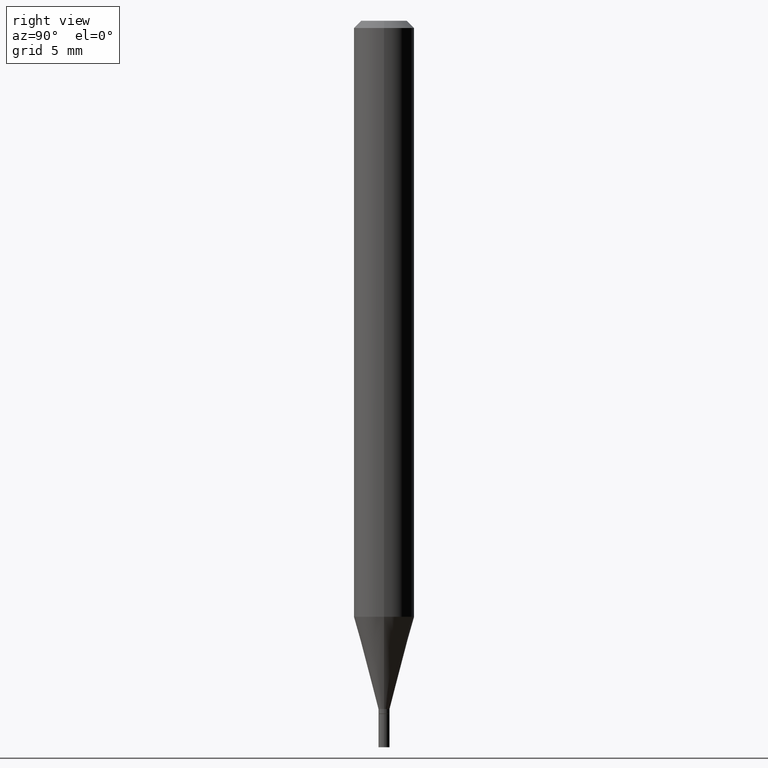
[diagram: clean part render]
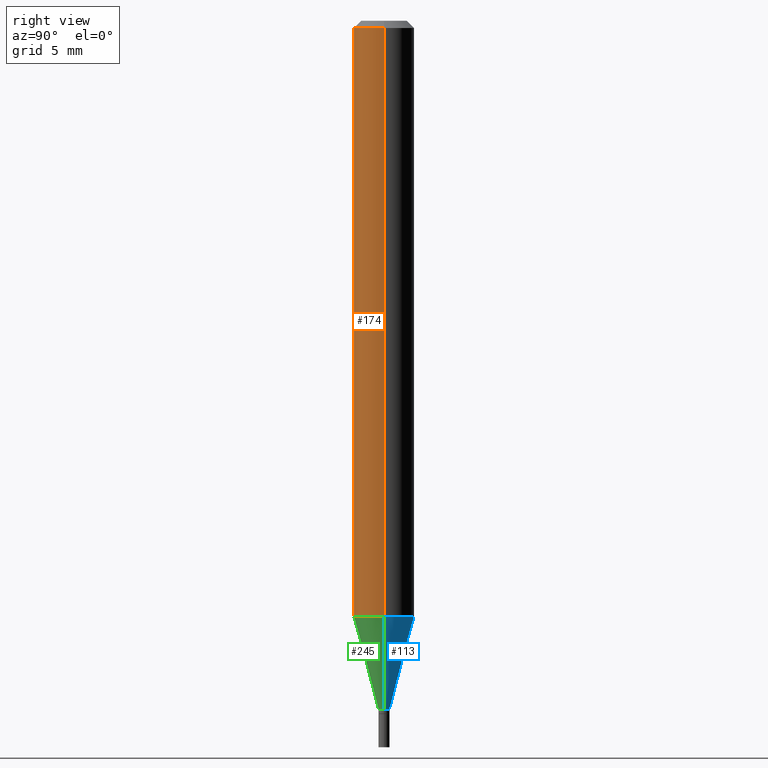
[diagram: same view with three faces highlighted in distinct colors, each labeled with its STEP entity id]
A machine part, right view with three faces highlighted in distinct colors.
Their STEP definitions:

[orange] entity #174 — the highlighted cylindrical surface (edge-blend (fillet) strip) has radius 1.5875 mm, axis along (-0, 0, 1).
#26 = DIRECTION ( 'NONE',  ( 1.000000000000000000, -6.982962677686266711E-15, 4.876176775795935793E-29 ) ) ;
#31 = CIRCLE ( 'NONE', #459, 0.06250000000000000000 ) ;
#44 = CARTESIAN_POINT ( 'NONE',  ( 3.009553868105685827E-29, -4.296845309233809826E-15, -1.230665408813987893 ) ) ;
#80 = VERTEX_POINT ( 'NONE', #104 ) ;
#81 = DIRECTION ( 'NONE',  ( -2.445468806185136877E-29, 3.491481338843145188E-15, 1.000000000000000000 ) ) ;
#92 = CARTESIAN_POINT ( 'NONE',  ( -0.06249999999999997918, -3.852756099383747210E-15, -1.230665408813987893 ) ) ;
#104 = CARTESIAN_POINT ( 'NONE',  ( -0.06250000000000000000, -1.730519554808165837E-15, -0.01499999999999999944 ) ) ;
#105 = CYLINDRICAL_SURFACE ( 'NONE', #395, 0.06250000000000000000 ) ;
#108 = CIRCLE ( 'NONE', #385, 0.06250000000000000000 ) ;
#120 = EDGE_CURVE ( 'NONE', #412, #322, #31, .T. ) ;
#124 = DIRECTION ( 'NONE',  ( 1.000000000000000000, -6.982962677686266711E-15, 0.000000000000000000 ) ) ;
#136 = DIRECTION ( 'NONE',  ( -2.445468806185136597E-29, 3.491481338843145583E-15, 1.000000000000000000 ) ) ;
#160 = LINE ( 'NONE', #281, #196 ) ;
#174 = ADVANCED_FACE ( 'NONE', ( #339 ), #105, .T. ) ;
#183 = EDGE_LOOP ( 'NONE', ( #241, #254, #220, #458 ) ) ;
#195 = CARTESIAN_POINT ( 'NONE',  ( -0.06250000000000000000, 4.440892098500626162E-16, -3.074334431409316114E-30 ) ) ;
#196 = VECTOR ( 'NONE', #442, 39.37007874015748143 ) ;
#212 = CARTESIAN_POINT ( 'NONE',  ( 0.000000000000000000, 0.000000000000000000, 0.000000000000000000 ) ) ;
#220 = ORIENTED_EDGE ( 'NONE', *, *, #433, .T. ) ;
#237 = EDGE_CURVE ( 'NONE', #412, #80, #272, .T. ) ;
#241 = ORIENTED_EDGE ( 'NONE', *, *, #237, .F. ) ;
#254 = ORIENTED_EDGE ( 'NONE', *, *, #120, .T. ) ;
#269 = CARTESIAN_POINT ( 'NONE',  ( 0.06250000000000000000, -4.888073874380388472E-16, -0.01499999999999999944 ) ) ;
#272 = LINE ( 'NONE', #195, #451 ) ;
#278 = CARTESIAN_POINT ( 'NONE',  ( 0.06249999999999997918, -4.733280476589200707E-15, -1.230665408813987893 ) ) ;
#281 = CARTESIAN_POINT ( 'NONE',  ( 0.06250000000000000000, -4.364351673553916694E-16, 3.047610484872459871E-30 ) ) ;
#308 = DIRECTION ( 'NONE',  ( 1.000000000000000000, -6.982962677686262766E-15, 0.000000000000000000 ) ) ;
#322 = VERTEX_POINT ( 'NONE', #278 ) ;
#336 = VERTEX_POINT ( 'NONE', #269 ) ;
#339 = FACE_OUTER_BOUND ( 'NONE', #183, .T. ) ;
#341 = DIRECTION ( 'NONE',  ( -2.445468806185136597E-29, 3.491481338843145583E-15, 1.000000000000000000 ) ) ;
#377 = CARTESIAN_POINT ( 'NONE',  ( 3.668203209277705088E-31, -5.237222008264718399E-17, -0.01499999999999999944 ) ) ;
#385 = AXIS2_PLACEMENT_3D ( 'NONE', #377, #454, #124 ) ;
#395 = AXIS2_PLACEMENT_3D ( 'NONE', #212, #136, #26 ) ;
#412 = VERTEX_POINT ( 'NONE', #92 ) ;
#433 = EDGE_CURVE ( 'NONE', #322, #336, #160, .T. ) ;
#437 = EDGE_CURVE ( 'NONE', #80, #336, #108, .T. ) ;
#442 = DIRECTION ( 'NONE',  ( -2.445468806185136877E-29, 3.491481338843145188E-15, 1.000000000000000000 ) ) ;
#451 = VECTOR ( 'NONE', #81, 39.37007874015748143 ) ;
#454 = DIRECTION ( 'NONE',  ( -2.445468806185136597E-29, 3.491481338843145583E-15, 1.000000000000000000 ) ) ;
#458 = ORIENTED_EDGE ( 'NONE', *, *, #437, .F. ) ;
#459 = AXIS2_PLACEMENT_3D ( 'NONE', #44, #341, #308 ) ;

[blue] entity #113 — the highlighted conical surface has half-angle 15 deg.
#10 = DIRECTION ( 'NONE',  ( -2.445468806185136597E-29, 3.491481338843145583E-15, 1.000000000000000000 ) ) ;
#45 = DIRECTION ( 'NONE',  ( 1.000000000000000000, -6.982962677686254878E-15, 0.000000000000000000 ) ) ;
#53 = LINE ( 'NONE', #203, #221 ) ;
#56 = VERTEX_POINT ( 'NONE', #230 ) ;
#65 = EDGE_CURVE ( 'NONE', #56, #412, #332, .T. ) ;
#85 = ORIENTED_EDGE ( 'NONE', *, *, #347, .F. ) ;
#92 = CARTESIAN_POINT ( 'NONE',  ( -0.06249999999999997918, -3.852756099383747210E-15, -1.230665408813987893 ) ) ;
#113 = ADVANCED_FACE ( 'NONE', ( #114 ), #320, .T. ) ;
#114 = FACE_OUTER_BOUND ( 'NONE', #288, .T. ) ;
#116 = AXIS2_PLACEMENT_3D ( 'NONE', #282, #307, #45 ) ;
#127 = VERTEX_POINT ( 'NONE', #414 ) ;
#145 = DIRECTION ( 'NONE',  ( 1.000000000000000000, -6.982962677686254878E-15, 0.000000000000000000 ) ) ;
#156 = DIRECTION ( 'NONE',  ( 1.000000000000000000, -6.982962677686262766E-15, 0.000000000000000000 ) ) ;
#163 = CIRCLE ( 'NONE', #375, 0.06250000000000000000 ) ;
#201 = CARTESIAN_POINT ( 'NONE',  ( 3.009553868105685827E-29, -4.296845309233809826E-15, -1.230665408813987893 ) ) ;
#203 = CARTESIAN_POINT ( 'NONE',  ( 0.01149999999999992001, -5.041699053289501888E-15, -1.421000000000000263 ) ) ;
#221 = VECTOR ( 'NONE', #351, 39.37007874015748143 ) ;
#226 = EDGE_CURVE ( 'NONE', #127, #56, #452, .T. ) ;
#230 = CARTESIAN_POINT ( 'NONE',  ( -0.01149999999999992001, -4.366219333633723973E-15, -1.421000000000000263 ) ) ;
#242 = ORIENTED_EDGE ( 'NONE', *, *, #268, .F. ) ;
#260 = VECTOR ( 'NONE', #276, 39.37007874015748143 ) ;
#268 = EDGE_CURVE ( 'NONE', #322, #412, #163, .T. ) ;
#276 = DIRECTION ( 'NONE',  ( -0.2588190451025216277, 5.211531920934551831E-15, 0.9659258262890679791 ) ) ;
#278 = CARTESIAN_POINT ( 'NONE',  ( 0.06249999999999997918, -4.733280476589200707E-15, -1.230665408813987893 ) ) ;
#282 = CARTESIAN_POINT ( 'NONE',  ( 3.475011173589079817E-29, -4.961394982496111147E-15, -1.421000000000000263 ) ) ;
#288 = EDGE_LOOP ( 'NONE', ( #420, #464, #242, #85 ) ) ;
#307 = DIRECTION ( 'NONE',  ( -2.445468806185136597E-29, 3.491481338843145583E-15, 1.000000000000000000 ) ) ;
#315 = DIRECTION ( 'NONE',  ( -2.445468806185136597E-29, 3.491481338843145583E-15, 1.000000000000000000 ) ) ;
#320 = CONICAL_SURFACE ( 'NONE', #333, 0.01149999999999992001, 0.2617993877991502960 ) ;
#322 = VERTEX_POINT ( 'NONE', #278 ) ;
#332 = LINE ( 'NONE', #438, #260 ) ;
#333 = AXIS2_PLACEMENT_3D ( 'NONE', #338, #10, #145 ) ;
#338 = CARTESIAN_POINT ( 'NONE',  ( 3.475011173589079817E-29, -4.961394982496111147E-15, -1.421000000000000263 ) ) ;
#347 = EDGE_CURVE ( 'NONE', #127, #322, #53, .T. ) ;
#351 = DIRECTION ( 'NONE',  ( 0.2588190451025216277, 1.565188264969619995E-15, 0.9659258262890679791 ) ) ;
#375 = AXIS2_PLACEMENT_3D ( 'NONE', #201, #315, #156 ) ;
#412 = VERTEX_POINT ( 'NONE', #92 ) ;
#414 = CARTESIAN_POINT ( 'NONE',  ( 0.01149999999999992001, -5.041699053289501888E-15, -1.421000000000000263 ) ) ;
#420 = ORIENTED_EDGE ( 'NONE', *, *, #226, .T. ) ;
#438 = CARTESIAN_POINT ( 'NONE',  ( -0.01149999999999992001, -4.879682567883699947E-15, -1.421000000000000263 ) ) ;
#452 = CIRCLE ( 'NONE', #116, 0.01149999999999992001 ) ;
#464 = ORIENTED_EDGE ( 'NONE', *, *, #65, .T. ) ;

[green] entity #245 — the highlighted conical surface has half-angle 15 deg.
#31 = CIRCLE ( 'NONE', #459, 0.06250000000000000000 ) ;
#44 = CARTESIAN_POINT ( 'NONE',  ( 3.009553868105685827E-29, -4.296845309233809826E-15, -1.230665408813987893 ) ) ;
#53 = LINE ( 'NONE', #203, #221 ) ;
#56 = VERTEX_POINT ( 'NONE', #230 ) ;
#65 = EDGE_CURVE ( 'NONE', #56, #412, #332, .T. ) ;
#88 = AXIS2_PLACEMENT_3D ( 'NONE', #239, #381, #131 ) ;
#92 = CARTESIAN_POINT ( 'NONE',  ( -0.06249999999999997918, -3.852756099383747210E-15, -1.230665408813987893 ) ) ;
#120 = EDGE_CURVE ( 'NONE', #412, #322, #31, .T. ) ;
#127 = VERTEX_POINT ( 'NONE', #414 ) ;
#131 = DIRECTION ( 'NONE',  ( 1.000000000000000000, -6.982962677686254878E-15, 0.000000000000000000 ) ) ;
#135 = ORIENTED_EDGE ( 'NONE', *, *, #143, .T. ) ;
#143 = EDGE_CURVE ( 'NONE', #56, #127, #357, .T. ) ;
#176 = EDGE_LOOP ( 'NONE', ( #355, #135, #316, #388 ) ) ;
#190 = AXIS2_PLACEMENT_3D ( 'NONE', #380, #275, #409 ) ;
#203 = CARTESIAN_POINT ( 'NONE',  ( 0.01149999999999992001, -5.041699053289501888E-15, -1.421000000000000263 ) ) ;
#221 = VECTOR ( 'NONE', #351, 39.37007874015748143 ) ;
#230 = CARTESIAN_POINT ( 'NONE',  ( -0.01149999999999992001, -4.366219333633723973E-15, -1.421000000000000263 ) ) ;
#239 = CARTESIAN_POINT ( 'NONE',  ( 3.475011173589079817E-29, -4.961394982496111147E-15, -1.421000000000000263 ) ) ;
#245 = ADVANCED_FACE ( 'NONE', ( #408 ), #324, .T. ) ;
#260 = VECTOR ( 'NONE', #276, 39.37007874015748143 ) ;
#275 = DIRECTION ( 'NONE',  ( -2.445468806185136597E-29, 3.491481338843145583E-15, 1.000000000000000000 ) ) ;
#276 = DIRECTION ( 'NONE',  ( -0.2588190451025216277, 5.211531920934551831E-15, 0.9659258262890679791 ) ) ;
#278 = CARTESIAN_POINT ( 'NONE',  ( 0.06249999999999997918, -4.733280476589200707E-15, -1.230665408813987893 ) ) ;
#308 = DIRECTION ( 'NONE',  ( 1.000000000000000000, -6.982962677686262766E-15, 0.000000000000000000 ) ) ;
#316 = ORIENTED_EDGE ( 'NONE', *, *, #347, .T. ) ;
#322 = VERTEX_POINT ( 'NONE', #278 ) ;
#324 = CONICAL_SURFACE ( 'NONE', #190, 0.01149999999999992001, 0.2617993877991502960 ) ;
#332 = LINE ( 'NONE', #438, #260 ) ;
#341 = DIRECTION ( 'NONE',  ( -2.445468806185136597E-29, 3.491481338843145583E-15, 1.000000000000000000 ) ) ;
#347 = EDGE_CURVE ( 'NONE', #127, #322, #53, .T. ) ;
#351 = DIRECTION ( 'NONE',  ( 0.2588190451025216277, 1.565188264969619995E-15, 0.9659258262890679791 ) ) ;
#355 = ORIENTED_EDGE ( 'NONE', *, *, #65, .F. ) ;
#357 = CIRCLE ( 'NONE', #88, 0.01149999999999992001 ) ;
#380 = CARTESIAN_POINT ( 'NONE',  ( 3.475011173589079817E-29, -4.961394982496111147E-15, -1.421000000000000263 ) ) ;
#381 = DIRECTION ( 'NONE',  ( -2.445468806185136597E-29, 3.491481338843145583E-15, 1.000000000000000000 ) ) ;
#388 = ORIENTED_EDGE ( 'NONE', *, *, #120, .F. ) ;
#408 = FACE_OUTER_BOUND ( 'NONE', #176, .T. ) ;
#409 = DIRECTION ( 'NONE',  ( 1.000000000000000000, -6.982962677686254878E-15, 0.000000000000000000 ) ) ;
#412 = VERTEX_POINT ( 'NONE', #92 ) ;
#414 = CARTESIAN_POINT ( 'NONE',  ( 0.01149999999999992001, -5.041699053289501888E-15, -1.421000000000000263 ) ) ;
#438 = CARTESIAN_POINT ( 'NONE',  ( -0.01149999999999992001, -4.879682567883699947E-15, -1.421000000000000263 ) ) ;
#459 = AXIS2_PLACEMENT_3D ( 'NONE', #44, #341, #308 ) ;